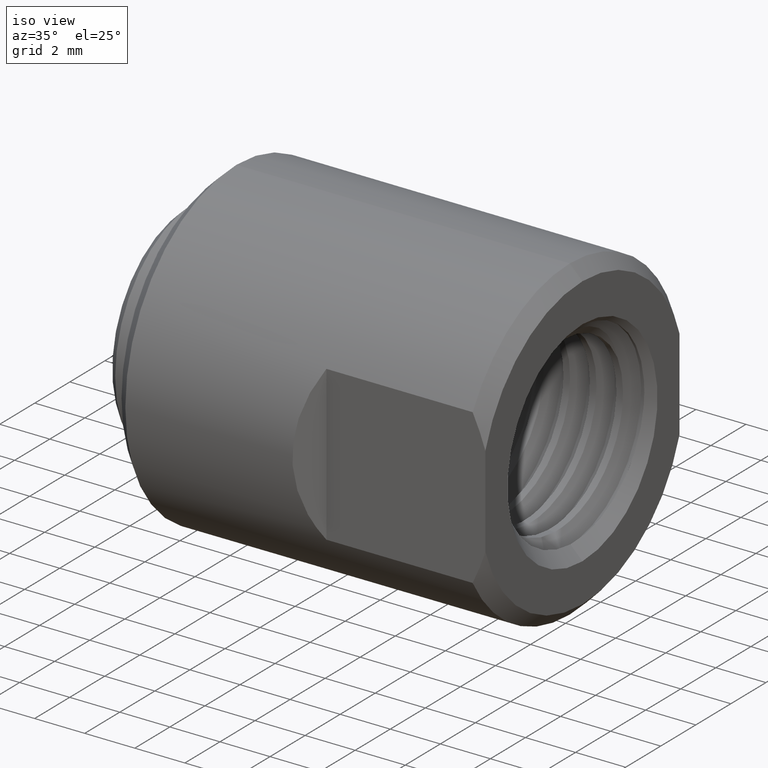
[diagram: clean part render]
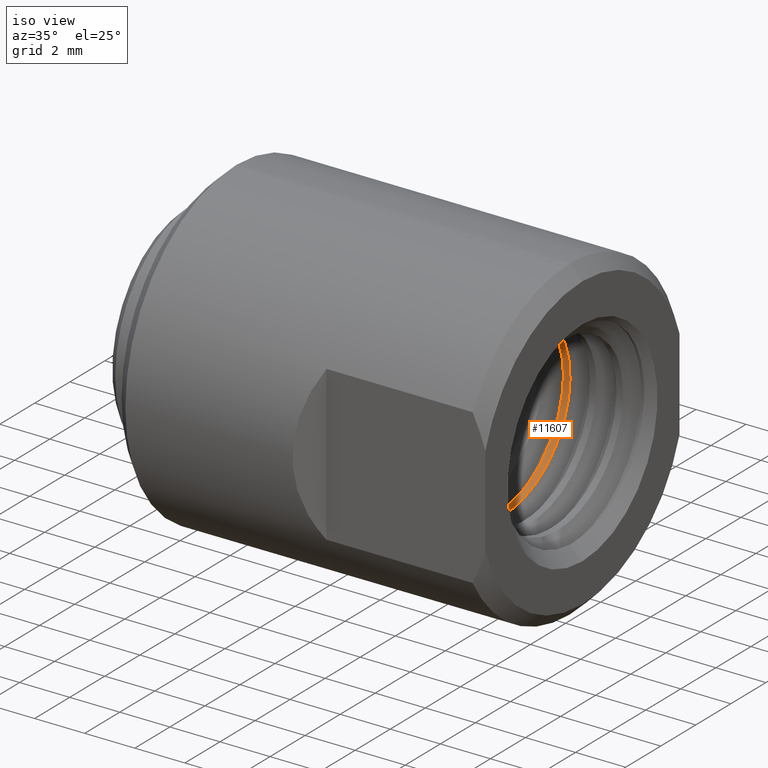
[diagram: same view with one face highlighted and labeled with its STEP entity id]
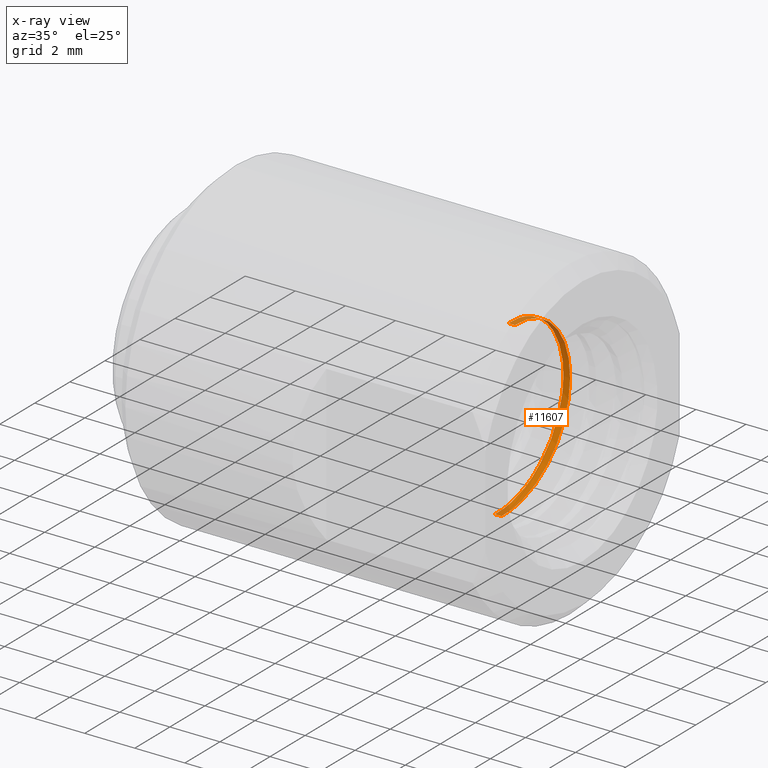
[diagram: x-ray of the same camera — body ghosted, the highlighted face saturated]
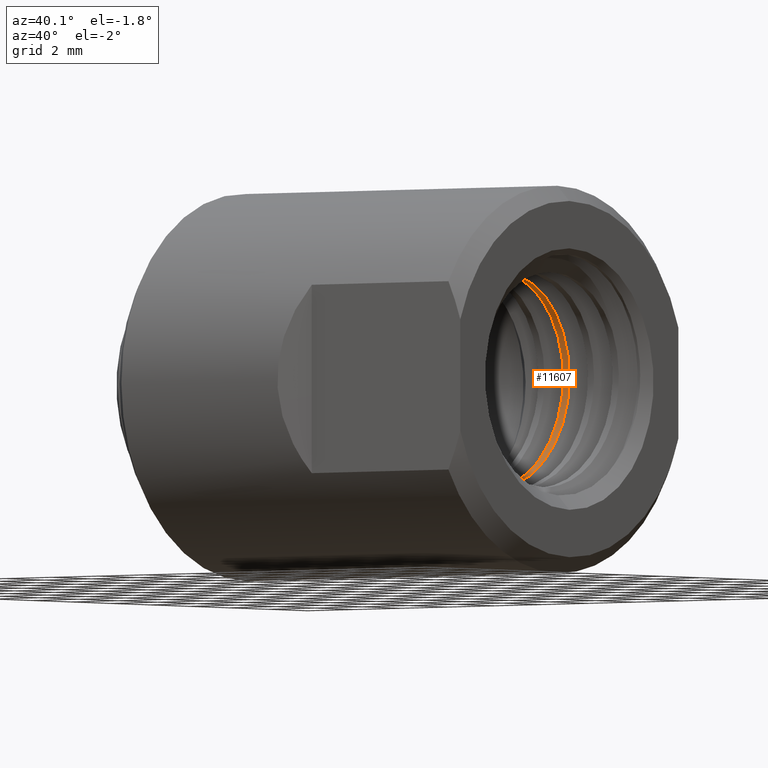
[diagram: same view with one face highlighted and labeled with its STEP entity id]
A machine part, iso view. The second image highlights one B-rep face of the part: STEP entity #11607.
The next image is the same camera in x-ray: the body ghosted, the highlighted face saturated — about 19% of this face is hidden behind the body in this view.
A second angle (auxiliary view) of the same face is appended — the face is thin or edge-on in the first view.
In plain terms, the highlighted cylindrical surface (partial cylindrical patch) has radius 3.5179 mm, axis along (-1, -0, -0).
Its self-contained STEP definition (entity closure, byte-faithful):
#47 = CARTESIAN_POINT ( 'NONE',  ( 0.3780789059174577416, 0.08245004014226620104, 0.1112845538507236942 ) ) ;
#106 = CARTESIAN_POINT ( 'NONE',  ( 0.3781044844201808530, 0.08201883308049019716, 0.1116030790824972529 ) ) ;
#172 = CARTESIAN_POINT ( 'NONE',  ( 0.3820124300946337592, 0.007069318762724320984, 0.1384999983699754245 ) ) ;
#237 = CARTESIAN_POINT ( 'NONE',  ( 0.3816224966270507224, 0.01540648956550519193, 0.1379723830284620700 ) ) ;
#291 = CARTESIAN_POINT ( 'NONE',  ( 0.3801222082422123782, 0.04552834446797884155, 0.1308162598485889117 ) ) ;
#357 = CARTESIAN_POINT ( 'NONE',  ( 0.3722894859597717931, 0.1383348015633319716, 0.008146053431457809038 ) ) ;
#417 = CARTESIAN_POINT ( 'NONE',  ( 0.3659425776173529932, 0.08557986593112497375, -0.1088967721940896083 ) ) ;
#478 = ORIENTED_EDGE ( 'NONE', *, *, #6997, .F. ) ;
#579 = CARTESIAN_POINT ( 'NONE',  ( 0.3634777490812567402, 0.04099754129125551816, -0.1322933004925530842 ) ) ;
#798 = AXIS2_PLACEMENT_3D ( 'NONE', #1253, #3430, #9147 ) ;
#982 = CARTESIAN_POINT ( 'NONE',  ( 0.3726939744750288330, 0.1375004513502712800, 0.01665585721681756698 ) ) ;
#1049 = CARTESIAN_POINT ( 'NONE',  ( 0.3767066069403538497, 0.1041539025832621673, 0.09129362923915740335 ) ) ;
#1107 = CARTESIAN_POINT ( 'NONE',  ( 0.3734073081086228818, 0.1354556707776465307, 0.03129717253764748713 ) ) ;
#1172 = CARTESIAN_POINT ( 'NONE',  ( 0.3756391047780702208, 0.1175292323816015672, 0.07331877327447361425 ) ) ;
#1236 = CARTESIAN_POINT ( 'NONE',  ( 0.3809340489079617864, 0.02952172624429136999, 0.1354015870637353958 ) ) ;
#1253 = CARTESIAN_POINT ( 'NONE',  ( 0.0000000000000000000, 0.0000000000000000000, 0.0000000000000000000 ) ) ;
#1292 = CARTESIAN_POINT ( 'NONE',  ( 0.3658317744106104885, 0.08374113758585741141, -0.1103245318839815303 ) ) ;
#1355 = CARTESIAN_POINT ( 'NONE',  ( 0.3664234300174106784, 0.09376478691891514117, -0.1020331497347056610 ) ) ;
#1414 = CARTESIAN_POINT ( 'NONE',  ( 0.3650376005729820683, 0.07043291973432939945, -0.1200550306835630882 ) ) ;
#1465 = CARTESIAN_POINT ( 'NONE',  ( 0.3635060243102689603, 0.04154941341711381603, -0.1321207725624575502 ) ) ;
#1523 = CARTESIAN_POINT ( 'NONE',  ( 0.3660059496142414881, 0.08665711789190279346, -0.1080407968808637931 ) ) ;
#1780 = ORIENTED_EDGE ( 'NONE', *, *, #2762, .T. ) ;
#1987 = CARTESIAN_POINT ( 'NONE',  ( 0.3780731954726403443, 0.08254947974100021457, 0.1112109015842745602 ) ) ;
#2050 = CARTESIAN_POINT ( 'NONE',  ( 0.3761041596243612228, 0.1121886923253668650, 0.08135627280150103946 ) ) ;
#2110 = CARTESIAN_POINT ( 'NONE',  ( 0.3803903102015121496, 0.04031865969899665891, 0.1325032542431592575 ) ) ;
#2176 = CARTESIAN_POINT ( 'NONE',  ( 0.3776650149355811892, 0.08953976733415931755, 0.1058660160596826688 ) ) ;
#2211 = ORIENTED_EDGE ( 'NONE', *, *, #6887, .F. ) ;
#2238 = CARTESIAN_POINT ( 'NONE',  ( 0.3765604606385281050, 0.1061915391166725064, 0.08891952368039324206 ) ) ;
#2293 = CARTESIAN_POINT ( 'NONE',  ( 0.3702109248898883820, 0.1338631392538552345, -0.03566759655357108760 ) ) ;
#2356 = CARTESIAN_POINT ( 'NONE',  ( 0.3697073348046794328, 0.1308662767391829962, -0.04557899539324518356 ) ) ;
#2412 = CARTESIAN_POINT ( 'NONE',  ( 0.3615024073798755455, 1.059531908548843573E-07, -0.1384999999999168285 ) ) ;
#2465 = CARTESIAN_POINT ( 'NONE',  ( 0.3705033976069442292, 0.1352581775721072299, -0.02979087244006379046 ) ) ;
#2762 = EDGE_CURVE ( 'NONE', #4006, #7974, #6240, .T. ) ;
#2845 = CARTESIAN_POINT ( 'NONE',  ( 0.3823333318837138783, 3.193503223216282181E-08, 0.1384999999999964315 ) ) ;
#2927 = CARTESIAN_POINT ( 'NONE',  ( 0.3780889277173573038, 0.08228105595818654971, 0.1114095546872965331 ) ) ;
#3003 = CARTESIAN_POINT ( 'NONE',  ( 0.3875416667804661985, 0.09793428919433691537, 0.09793428919433691537 ) ) ;
#3052 = CARTESIAN_POINT ( 'NONE',  ( 0.3788708813626063820, 0.06900710976041032896, 0.1207019346072718824 ) ) ;
#3087 = ORIENTED_EDGE ( 'NONE', *, *, #8908, .T. ) ;
#3113 = CARTESIAN_POINT ( 'NONE',  ( 0.3767518133787904344, 0.1035091413661124171, 0.09202234143979176606 ) ) ;
#3177 = CARTESIAN_POINT ( 'NONE',  ( 0.3753239389127759895, 0.1208084520265165357, 0.06773208442450308342 ) ) ;
#3238 = CARTESIAN_POINT ( 'NONE',  ( 0.3635013335726832162, 0.04145794834094006925, -0.1321495017666234062 ) ) ;
#3294 = CARTESIAN_POINT ( 'NONE',  ( 0.3634942848079016353, 0.04132045263305249294, -0.1321926109496402157 ) ) ;
#3355 = CARTESIAN_POINT ( 'NONE',  ( 0.3630615963041479155, 0.03272965166097898532, -0.1346378760400131491 ) ) ;
#3357 = DIRECTION ( 'NONE',  ( -1.000000000000000000, -0.0000000000000000000, -0.0000000000000000000 ) ) ;
#3413 = CARTESIAN_POINT ( 'NONE',  ( 0.3703920658626908002, 0.1347506485486275885, -0.03203513653531134264 ) ) ;
#3430 = DIRECTION ( 'NONE',  ( -1.000000000000000000, -0.0000000000000000000, -0.0000000000000000000 ) ) ;
#3468 = CARTESIAN_POINT ( 'NONE',  ( 0.3620286102462665911, 0.01124067556233931432, -0.1385000002340611713 ) ) ;
#3666 = VERTEX_POINT ( 'NONE', #10673 ) ;
#3776 =( BOUNDED_CURVE ( )  B_SPLINE_CURVE ( 2, ( #10605, #7767, #3003, #11675, #7701, #5818, #10728, #4747, #10536 ),
 .UNSPECIFIED., .F., .F. ) 
 B_SPLINE_CURVE_WITH_KNOTS ( ( 3, 2, 2, 2, 3 ),
 ( 0.4006533042129992173, 0.4173471609654578751, 0.4340410474040762301, 0.4507349338426945295, 0.4674288320856157530 ),
 .UNSPECIFIED. ) 
 CURVE ( )  GEOMETRIC_REPRESENTATION_ITEM ( )  RATIONAL_B_SPLINE_CURVE ( ( 1.000000000000000000, 0.9238795325112867385, 1.000000000000000000, 0.9238795325112867385, 1.000000000000000000, 0.9238795325112867385, 1.000000000000000000, 0.9238795325112867385, 1.000000000000000000 ) ) 
 REPRESENTATION_ITEM ( '' )  );
#3871 = CARTESIAN_POINT ( 'NONE',  ( 0.3803570407449846091, 0.04096939696872962250, 0.1323035467716365543 ) ) ;
#3931 = CARTESIAN_POINT ( 'NONE',  ( 0.3802591702487215786, 0.04287576603559047073, 0.1316996096598370969 ) ) ;
#3994 = CARTESIAN_POINT ( 'NONE',  ( 0.3725334875881923802, 0.1378577895103623718, 0.01332225578996413910 ) ) ;
#4006 = VERTEX_POINT ( 'NONE', #6856 ) ;
#4061 = CARTESIAN_POINT ( 'NONE',  ( 0.3806873084153132858, 0.03449130930716298032, 0.1342454047598149458 ) ) ;
#4116 = CARTESIAN_POINT ( 'NONE',  ( 0.3753492385266756770, 0.1205537903553357271, 0.06818431617676400103 ) ) ;
#4176 = CARTESIAN_POINT ( 'NONE',  ( 0.3713868337480953907, 0.1380232799765345741, -0.01151883164070438559 ) ) ;
#4236 = CARTESIAN_POINT ( 'NONE',  ( 0.3659870502162409500, 0.08632803269523962875, -0.1083039232658720014 ) ) ;
#4289 = CARTESIAN_POINT ( 'NONE',  ( 0.3716667555977510862, 0.1384125706980783854, -0.005404192847998618744 ) ) ;
#4348 = CARTESIAN_POINT ( 'NONE',  ( 0.3717685413556106599, 0.1384817617072370000, -0.003169653300567026270 ) ) ;
#4407 = CARTESIAN_POINT ( 'NONE',  ( 0.3624832837244716943, 0.02086826397867098948, -0.1371572696147612958 ) ) ;
#4410 = CARTESIAN_POINT ( 'NONE',  ( 0.0000000000000000000, 0.0000000000000000000, 0.1385000000000000953 ) ) ;
#4747 = CARTESIAN_POINT ( 'NONE',  ( 0.3745208334471329392, 0.05736857838867372161, -0.1385000000000000953 ) ) ;
#4800 = CARTESIAN_POINT ( 'NONE',  ( 0.3726448590302836039, 0.1376161351021810697, 0.01564245591346231229 ) ) ;
#4862 = CARTESIAN_POINT ( 'NONE',  ( 0.3754841015886997146, 0.1191675446181506975, 0.07058153703943209623 ) ) ;
#4923 = CARTESIAN_POINT ( 'NONE',  ( 0.3725628352158503187, 0.1377972362635137560, 0.01393934051022604689 ) ) ;
#4984 = CARTESIAN_POINT ( 'NONE',  ( 0.3751004389765009717, 0.1229962831630414116, 0.06370221233498170321 ) ) ;
#5046 = CARTESIAN_POINT ( 'NONE',  ( 0.3763167871734177106, 0.1094893925934592172, 0.08492065504791893038 ) ) ;
#5102 = CARTESIAN_POINT ( 'NONE',  ( 0.3670443931720043240, 0.1034258647346188581, -0.09255666451873655054 ) ) ;
#5166 = CARTESIAN_POINT ( 'NONE',  ( 0.3637169852193676278, 0.04564554199814321866, -0.1307773406028331920 ) ) ;
#5227 = CARTESIAN_POINT ( 'NONE',  ( 0.3634443231926823281, 0.04034335564327794915, -0.1324950355082896158 ) ) ;
#5277 = CARTESIAN_POINT ( 'NONE',  ( 0.3705572805665731662, 0.1354957415388640674, -0.02870225185363163567 ) ) ;
#5338 = CARTESIAN_POINT ( 'NONE',  ( 0.3659934018206422168, 0.08643700648129283570, -0.1082169754822973201 ) ) ;
#5429 = EDGE_LOOP ( 'NONE', ( #2211, #478, #1780, #3087 ) ) ;
#5716 = VECTOR ( 'NONE', #3357, 39.37007874015748143 ) ;
#5795 = VERTEX_POINT ( 'NONE', #8975 ) ;
#5818 = CARTESIAN_POINT ( 'NONE',  ( 0.3797291667804662540, 0.1385000000000000953, -0.05736857838867370774 ) ) ;
#5870 = CARTESIAN_POINT ( 'NONE',  ( 0.3752104721583024993, 0.1219448851352245566, 0.06570060636017066580 ) ) ;
#5932 = CARTESIAN_POINT ( 'NONE',  ( 0.3796162804541408087, 0.05516229649119731848, 0.1270773939742283476 ) ) ;
#5996 = CARTESIAN_POINT ( 'NONE',  ( 0.3780824950377674187, 0.08238967372211070117, 0.1113292061951290518 ) ) ;
#6018 = FACE_OUTER_BOUND ( 'NONE', #5429, .T. ) ;
#6060 = CARTESIAN_POINT ( 'NONE',  ( 0.3715402926800180361, 0.1382585493719577507, -0.008193638678039114054 ) ) ;
#6117 = CARTESIAN_POINT ( 'NONE',  ( 0.3715280254832947771, 0.1382415494695400093, -0.008464265832517700941 ) ) ;
#6177 = CARTESIAN_POINT ( 'NONE',  ( 0.3692578143859228113, 0.1276910709081571227, -0.05422985597812403358 ) ) ;
#6240 = LINE ( 'NONE', #4410, #5716 ) ;
#6290 = CARTESIAN_POINT ( 'NONE',  ( 0.3714964211850491638, 0.1381975182001036473, -0.009155094710313395681 ) ) ;
#6334 = B_SPLINE_CURVE_WITH_KNOTS ( 'NONE', 3,
 ( #6754, #172, #237, #1236, #4061, #2110, #3871, #10718, #3931, #291, #10790, #7942, #5932, #3052, #7879, #6821, #10592, #106, #2927, #47, #5996, #1987, #7692, #11603, #2176, #9591, #8832, #10657, #9844, #11539, #3113, #6942, #9655, #1049, #9781, #2238, #5046, #2050, #7755, #1172, #4862, #8704, #11723, #8891, #4116, #3177, #5870, #4984, #9715, #7819, #1107, #10848, #982, #4800, #8645, #4923, #8768, #3994, #11665, #6881, #7062, #357, #11904, #4348, #4289, #6060, #6117, #6290, #10904, #4176, #8064, #11078, #9899, #5277, #7117, #2465, #8004, #12017, #3413, #2293, #9957, #2356, #6177, #8237, #10964, #7237, #10015, #5102, #1355, #8176, #10125, #1523, #5338, #11848, #7178, #4236, #8118, #417, #9182, #1292, #12075, #1414, #11960, #10072, #5166, #9013, #11020, #1465, #3238, #3294, #579, #5227, #8953, #3355, #4407, #3468, #2412 ),
 .UNSPECIFIED., .F., .F.,
 ( 4, 2, 2, 2, 2, 2, 2, 2, 1, 1, 2, 2, 2, 2, 2, 2, 2, 1, 1, 1, 2, 2, 2, 1, 2, 2, 1, 2, 2, 2, 2, 1, 1, 2, 2, 1, 2, 2, 2, 1, 2, 2, 2, 2, 1, 1, 1, 2, 1, 2, 2, 2, 2, 2, 2, 1, 1, 2, 2, 2, 2, 2, 2, 1, 1, 1, 1, 2, 4 ),
 ( 0.5451098684532447169, 0.5533384965590596449, 0.5574528106119671644, 0.5579670998685806182, 0.5584813891251939610, 0.5595099676384208687, 0.5615671246648746839, 0.5697957527706897229, 0.5708243312839165196, 0.5713386205405299734, 0.5715957651688367003, 0.5718529097971434272, 0.5739100668235974645, 0.5780243808765056501, 0.5800815379029596874, 0.5803386825312664143, 0.5804029686883431793, 0.5804672548454198333, 0.5805958271595732523, 0.5811101164161868171, 0.5821386949294140578, 0.5862530089823230206, 0.5883101660087775020, 0.5888244552653910668, 0.5890815998936979048, 0.5892101722078513237, 0.5893387445220047427, 0.5903673230352319834, 0.5944816370881409462, 0.6027102651939588718, 0.6047674222204133532, 0.6057960007336405939, 0.6063102899902541587, 0.6065674346185609966, 0.6066960069327144156, 0.6068245792468678346, 0.6109388932997767974, 0.6129960503262311677, 0.6135103395828448436, 0.6140246288394584084, 0.6150532073526856491, 0.6191675214055946119, 0.6196818106622081768, 0.6198103829763615957, 0.6199389552905150147, 0.6201960999188218526, 0.6212246784320490933, 0.6232818354585035747, 0.6273961495114124265, 0.6315104635643213893, 0.6356247776172303521, 0.6438534057230481666, 0.6479677197759571294, 0.6480962920901105484, 0.6482248644042639674, 0.6484820090325709163, 0.6489962982891849252, 0.6500248768024128321, 0.6520820338288686457, 0.6603106619346919004, 0.6623678189611477141, 0.6633963974743757319, 0.6634606836314523859, 0.6635249697885291509, 0.6636535421026825698, 0.6639106867309896298, 0.6644249759876035277, 0.6685392900405147110, 0.6767679181463372995 ),
 .UNSPECIFIED. ) ;
#6754 = CARTESIAN_POINT ( 'NONE',  ( 0.3823333318837138783, 3.193503223216282181E-08, 0.1384999999999964315 ) ) ;
#6821 = CARTESIAN_POINT ( 'NONE',  ( 0.3781849968734475320, 0.08066166989560763501, 0.1125891982549817316 ) ) ;
#6856 = CARTESIAN_POINT ( 'NONE',  ( 0.3927499863134033542, 1.882640121195209957E-07, 0.1384999999998721421 ) ) ;
#6881 = CARTESIAN_POINT ( 'NONE',  ( 0.3725189624494675833, 0.1378872452758358180, 0.01301449584378955478 ) ) ;
#6887 = EDGE_CURVE ( 'NONE', #3666, #5795, #8388, .T. ) ;
#6942 = CARTESIAN_POINT ( 'NONE',  ( 0.3767461879454616636, 0.1035896082259634837, 0.09193175043478100938 ) ) ;
#6997 = EDGE_CURVE ( 'NONE', #4006, #3666, #3776, .T. ) ;
#7062 = CARTESIAN_POINT ( 'NONE',  ( 0.3725058449739445110, 0.1379132163824341450, 0.01273633616384272846 ) ) ;
#7117 = CARTESIAN_POINT ( 'NONE',  ( 0.3705079787957355486, 0.1352785924915308191, -0.02969838363952001514 ) ) ;
#7178 = CARTESIAN_POINT ( 'NONE',  ( 0.3659937967666105352, 0.08644445591664466633, -0.1082109426801783625 ) ) ;
#7237 = CARTESIAN_POINT ( 'NONE',  ( 0.3681276073168257001, 0.1168842125910418278, -0.07443574247391662735 ) ) ;
#7692 = CARTESIAN_POINT ( 'NONE',  ( 0.3780410236687685721, 0.08310724518651775583, 0.1108011437759156143 ) ) ;
#7701 = CARTESIAN_POINT ( 'NONE',  ( 0.3823333334471328837, 0.1385000000000000953, 8.480679084095428374E-18 ) ) ;
#7755 = CARTESIAN_POINT ( 'NONE',  ( 0.3757586851353243440, 0.1161991403491425406, 0.07540380450996704564 ) ) ;
#7767 = CARTESIAN_POINT ( 'NONE',  ( 0.3901458334471329392, 0.05736857838867371467, 0.1385000000000000953 ) ) ;
#7819 = CARTESIAN_POINT ( 'NONE',  ( 0.3742879971798119820, 0.1298682023787918194, 0.04850644750514659237 ) ) ;
#7879 = CARTESIAN_POINT ( 'NONE',  ( 0.3784534217713634296, 0.07612210257149301662, 0.1158108758240630198 ) ) ;
#7942 = CARTESIAN_POINT ( 'NONE',  ( 0.3797765390025716337, 0.05214525693129565959, 0.1283564618033471438 ) ) ;
#7974 = VERTEX_POINT ( 'NONE', #2845 ) ;
#8004 = CARTESIAN_POINT ( 'NONE',  ( 0.3704894857733125324, 0.1351960205888543820, -0.03007169263287161332 ) ) ;
#8064 = CARTESIAN_POINT ( 'NONE',  ( 0.3711697140879994805, 0.1376069050002697303, -0.01613500733839899615 ) ) ;
#8118 = CARTESIAN_POINT ( 'NONE',  ( 0.3659670417521384000, 0.08598834297423185724, -0.1085742990170023570 ) ) ;
#8176 = CARTESIAN_POINT ( 'NONE',  ( 0.3662194595213274506, 0.09038998422330875304, -0.1050345165308818191 ) ) ;
#8237 = CARTESIAN_POINT ( 'NONE',  ( 0.3688050629029495653, 0.1236707343784226587, -0.06252180953009538189 ) ) ;
#8388 = LINE ( 'NONE', #9404, #10947 ) ;
#8645 = CARTESIAN_POINT ( 'NONE',  ( 0.3725874635410191815, 0.1377444946648233026, 0.01445210906404609599 ) ) ;
#8704 = CARTESIAN_POINT ( 'NONE',  ( 0.3754371860511782066, 0.1196572062401952824, 0.06975055122908026262 ) ) ;
#8768 = CARTESIAN_POINT ( 'NONE',  ( 0.3725412236538807598, 0.1378419715647474508, 0.01348567885215545999 ) ) ;
#8832 = CARTESIAN_POINT ( 'NONE',  ( 0.3770343117211602535, 0.09941469834912887438, 0.09652694082516413698 ) ) ;
#8891 = CARTESIAN_POINT ( 'NONE',  ( 0.3753657762931209563, 0.1203862860165523241, 0.06847933109744343272 ) ) ;
#8908 = EDGE_CURVE ( 'NONE', #7974, #5795, #6334, .T. ) ;
#8953 = CARTESIAN_POINT ( 'NONE',  ( 0.3632590202144704294, 0.03670111958782497352, -0.1335927131156882663 ) ) ;
#8975 = CARTESIAN_POINT ( 'NONE',  ( 0.3615024073798755455, 1.059531908548843573E-07, -0.1384999999999168285 ) ) ;
#9013 = CARTESIAN_POINT ( 'NONE',  ( 0.3636161582005588144, 0.04369530490437617543, -0.1314438733143948879 ) ) ;
#9147 = DIRECTION ( 'NONE',  ( 0.0000000000000000000, 0.0000000000000000000, 1.000000000000000000 ) ) ;
#9182 = CARTESIAN_POINT ( 'NONE',  ( 0.3658838973175183029, 0.08460376751139629670, -0.1096591734019577574 ) ) ;
#9404 = CARTESIAN_POINT ( 'NONE',  ( 0.0000000000000000000, 1.696135816819085675E-17, -0.1385000000000000953 ) ) ;
#9591 = CARTESIAN_POINT ( 'NONE',  ( 0.3772099166675845217, 0.09671972905154098410, 0.09918783864389633942 ) ) ;
#9655 = CARTESIAN_POINT ( 'NONE',  ( 0.3767377368398213688, 0.1037103745885481071, 0.09179560996526955896 ) ) ;
#9715 = CARTESIAN_POINT ( 'NONE',  ( 0.3746249673444836392, 0.1273607636249099728, 0.05497641623083373424 ) ) ;
#9781 = CARTESIAN_POINT ( 'NONE',  ( 0.3766319043552203150, 0.1052077597940022785, 0.09008499124231179878 ) ) ;
#9844 = CARTESIAN_POINT ( 'NONE',  ( 0.3767845501096225291, 0.1030399172720984913, 0.09254907781879813389 ) ) ;
#9862 = CYLINDRICAL_SURFACE ( 'NONE', #798, 0.1385000000000000953 ) ;
#9899 = CARTESIAN_POINT ( 'NONE',  ( 0.3705957370137619167, 0.1356582579776389741, -0.02792292941153937461 ) ) ;
#9957 = CARTESIAN_POINT ( 'NONE',  ( 0.3700432634696658729, 0.1329189416681273994, -0.03898845018699070852 ) ) ;
#10015 = CARTESIAN_POINT ( 'NONE',  ( 0.3674704374968580933, 0.1092471673706425367, -0.08560783880098338239 ) ) ;
#10072 = CARTESIAN_POINT ( 'NONE',  ( 0.3640097142455305246, 0.05126604599365299636, -0.1287243403789326002 ) ) ;
#10125 = CARTESIAN_POINT ( 'NONE',  ( 0.3660122264575469408, 0.08676703910856992108, -0.1079525395547279304 ) ) ;
#10536 = CARTESIAN_POINT ( 'NONE',  ( 0.3719158377937469284, -3.681211141705355731E-08, -0.1384999999999899645 ) ) ;
#10592 = CARTESIAN_POINT ( 'NONE',  ( 0.3781444514142580648, 0.08134544778884758576, 0.1120963721187491491 ) ) ;
#10605 = CARTESIAN_POINT ( 'NONE',  ( 0.3927499863134033542, 1.882640121195209957E-07, 0.1384999999998721421 ) ) ;
#10657 = CARTESIAN_POINT ( 'NONE',  ( 0.3768098624422042686, 0.1026745898476469077, 0.09295411443022186249 ) ) ;
#10673 = CARTESIAN_POINT ( 'NONE',  ( 0.3719158377937469284, -3.681211141705355731E-08, -0.1384999999999899645 ) ) ;
#10718 = CARTESIAN_POINT ( 'NONE',  ( 0.3802899625219414714, 0.04227711129368316723, 0.1318914926634674467 ) ) ;
#10728 = CARTESIAN_POINT ( 'NONE',  ( 0.3771250001137995134, 0.09793428919433691537, -0.09793428919433690150 ) ) ;
#10790 = CARTESIAN_POINT ( 'NONE',  ( 0.3800336949204039527, 0.04723110363419321528, 0.1302095911454772825 ) ) ;
#10848 = CARTESIAN_POINT ( 'NONE',  ( 0.3729938106249321428, 0.1366986615303829866, 0.02281212735118484311 ) ) ;
#10904 = CARTESIAN_POINT ( 'NONE',  ( 0.3714460598292372850, 0.1381238418544970259, -0.01024965522428546161 ) ) ;
#10947 = VECTOR ( 'NONE', #11227, 39.37007874015748143 ) ;
#10964 = CARTESIAN_POINT ( 'NONE',  ( 0.3683506958878678406, 0.1192477905756614970, -0.07059314167423823283 ) ) ;
#11020 = CARTESIAN_POINT ( 'NONE',  ( 0.3635055756490226941, 0.04154069116727558686, -0.1321235733677549040 ) ) ;
#11078 = CARTESIAN_POINT ( 'NONE',  ( 0.3709329803131307113, 0.1370287778645627452, -0.02107017991636636264 ) ) ;
#11227 = DIRECTION ( 'NONE',  ( -1.000000000000000000, -0.0000000000000000000, -0.0000000000000000000 ) ) ;
#11539 = CARTESIAN_POINT ( 'NONE',  ( 0.3767524427891345562, 0.1035001763280190418, 0.09203250864424711297 ) ) ;
#11603 = CARTESIAN_POINT ( 'NONE',  ( 0.3778727916858771740, 0.08598572103351551088, 0.1086026539110293149 ) ) ;
#11607 = ADVANCED_FACE ( 'NONE', ( #6018 ), #9862, .F. ) ;
#11665 = CARTESIAN_POINT ( 'NONE',  ( 0.3725298738940648891, 0.1378651577990207822, 0.01324571334641051062 ) ) ;
#11675 = CARTESIAN_POINT ( 'NONE',  ( 0.3849375001137995134, 0.1385000000000000953, 0.05736857838867372161 ) ) ;
#11723 = CARTESIAN_POINT ( 'NONE',  ( 0.3753896486425917223, 0.1201436445551058302, 0.06890472601110843309 ) ) ;
#11848 = CARTESIAN_POINT ( 'NONE',  ( 0.3659968652908493492, 0.08649782021308984048, -0.1081682837850282547 ) ) ;
#11904 = CARTESIAN_POINT ( 'NONE',  ( 0.3720757449002088935, 0.1385270134325297386, 0.003535061499709478156 ) ) ;
#11960 = CARTESIAN_POINT ( 'NONE',  ( 0.3641918642226210090, 0.05470572883105569162, -0.1272851838156503212 ) ) ;
#12017 = CARTESIAN_POINT ( 'NONE',  ( 0.3704686156563627430, 0.1351021290516377649, -0.03049277770868608767 ) ) ;
#12075 = CARTESIAN_POINT ( 'NONE',  ( 0.3655061463409789435, 0.07831314474234003786, -0.1143616575345741404 ) ) ;